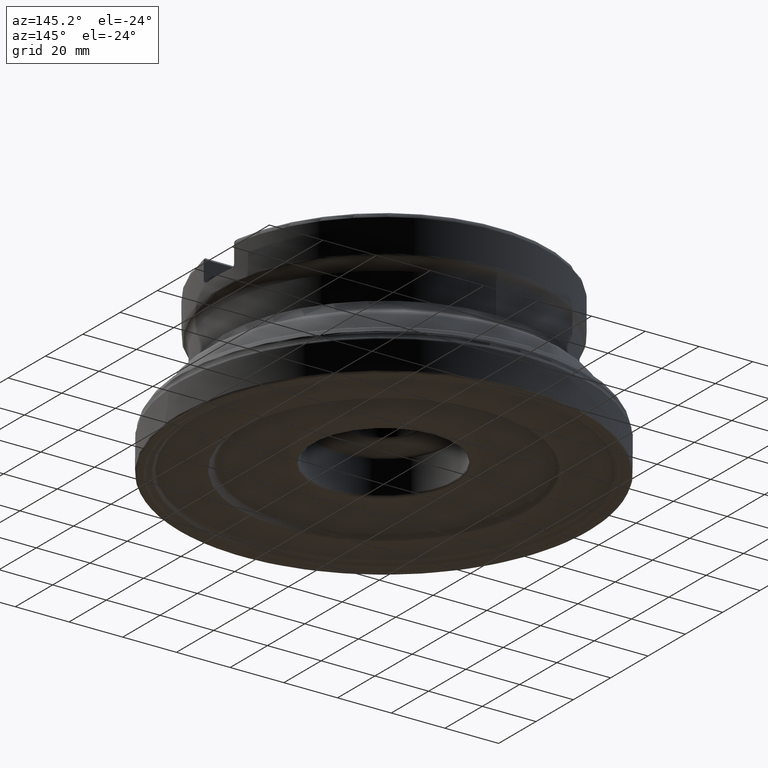
[diagram: clean part render]
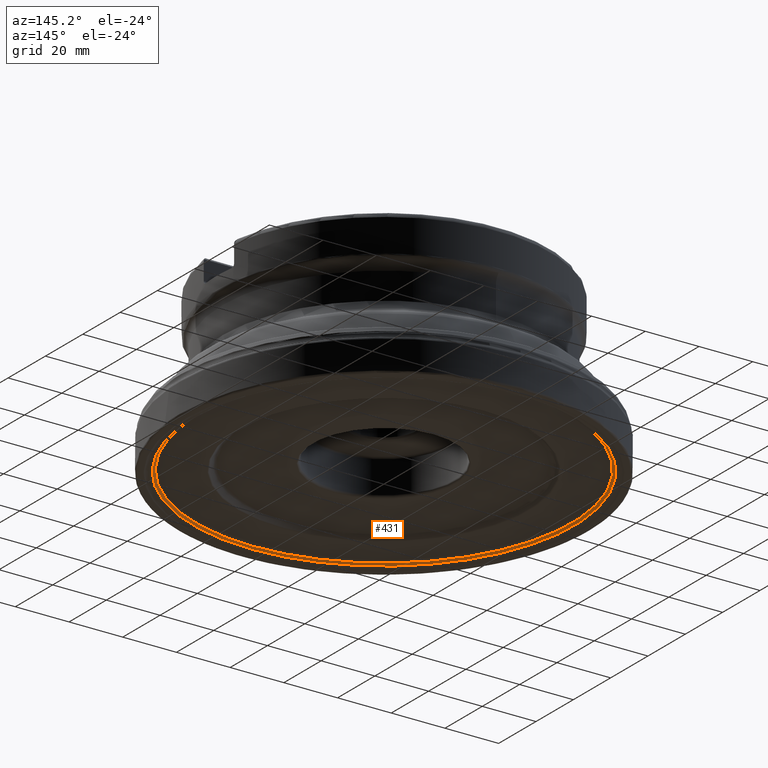
[diagram: same view with one face highlighted and labeled with its STEP entity id]
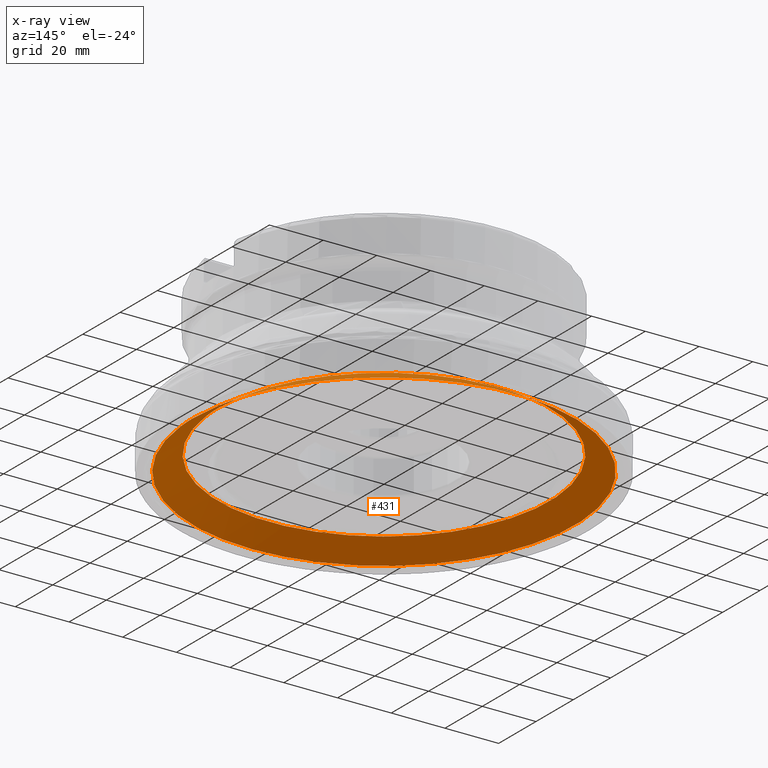
[diagram: x-ray of the same camera — body ghosted, the highlighted face saturated]
A machine part, auxiliary view. The second image highlights one B-rep face of the part: STEP entity #431.
The next image is the same camera in x-ray: the body ghosted, the highlighted face saturated — about 0% of this face is hidden behind the body in this view.
In plain terms, the highlighted face is a SurfaceOfRevolution surface.
Its self-contained STEP definition (entity closure, byte-faithful):
#131=SURFACE_OF_REVOLUTION('',#1183,#152);
#152=AXIS1_PLACEMENT('',#2529,#1588);
#353=FACE_BOUND('',#597,.T.);
#354=FACE_BOUND('',#598,.T.);
#431=ADVANCED_FACE('',(#353,#354),#131,.F.);
#597=EDGE_LOOP('',(#835));
#598=EDGE_LOOP('',(#836));
#835=ORIENTED_EDGE('',*,*,#1053,.T.);
#836=ORIENTED_EDGE('',*,*,#1054,.F.);
#934=VERTEX_POINT('',#2500);
#935=VERTEX_POINT('',#2514);
#1053=EDGE_CURVE('',#934,#934,#1116,.T.);
#1054=EDGE_CURVE('',#935,#935,#1117,.T.);
#1116=CIRCLE('',#1302,61.5937799222245);
#1117=CIRCLE('',#1303,70.9172236874596);
#1183=B_SPLINE_CURVE_WITH_KNOTS('',3,(#2515,#2516,#2517,#2518,#2519,#2520,
#2521,#2522,#2523,#2524,#2525,#2526,#2527,#2528),.UNSPECIFIED.,.F.,.F.,
(4,1,1,1,1,1,1,1,1,1,1,4),(0.,0.228057409693128,0.368730032744676,0.509402655796224,
0.650075278847771,0.720411590373545,0.755579746136432,0.790747901899319,
0.861084213425093,0.931420524950867,0.966588680713754,1.),.UNSPECIFIED.);
#1302=AXIS2_PLACEMENT_3D('',#2499,#1583,#1584);
#1303=AXIS2_PLACEMENT_3D('',#2513,#1586,#1587);
#1583=DIRECTION('',(0.,0.,1.));
#1584=DIRECTION('',(1.,0.,0.));
#1586=DIRECTION('',(0.,0.,1.));
#1587=DIRECTION('',(1.,0.,0.));
#1588=DIRECTION('',(0.,0.,1.));
#2499=CARTESIAN_POINT('',(0.,0.,6.5329232306729));
#2500=CARTESIAN_POINT('',(61.5937799222245,0.,6.5329232306729));
#2513=CARTESIAN_POINT('',(0.,0.,0.804815476483029));
#2514=CARTESIAN_POINT('',(70.9172236874596,0.,0.804815476483029));
#2515=CARTESIAN_POINT('',(70.505819839789,-7.62771994035323,0.80481543104098));
#2516=CARTESIAN_POINT('',(69.7822649180793,-7.62814093842944,1.22120099170339));
#2517=CARTESIAN_POINT('',(68.6177005639652,-7.62721934698245,1.90364026009569));
#2518=CARTESIAN_POINT('',(67.0208704378826,-7.6225068319432,2.86655408846326));
#2519=CARTESIAN_POINT('',(65.7048974606953,-7.61654630443386,3.67566733730147));
#2520=CARTESIAN_POINT('',(64.6134591421042,-7.60995262692895,4.35830513686319));
#2521=CARTESIAN_POINT('',(63.8520964427483,-7.60501556974296,4.84032177045754));
#2522=CARTESIAN_POINT('',(63.4177066478705,-7.60126727113347,5.1168467511746));
#2523=CARTESIAN_POINT('',(62.9828338225011,-7.58587819020958,5.39223035095929));
#2524=CARTESIAN_POINT('',(62.4388661814519,-7.54887330398861,5.7346028239669));
#2525=CARTESIAN_POINT('',(61.8949407620293,-7.48692195271971,6.07336245257427));
#2526=CARTESIAN_POINT('',(61.4656093552587,-7.4224606839065,6.33815525382094));
#2527=CARTESIAN_POINT('',(61.2538155776908,-7.39051432677642,6.46908292370346));
#2528=CARTESIAN_POINT('',(61.1506670993739,-7.37493311216988,6.5329232306729));
#2529=CARTESIAN_POINT('',(0.,0.,0.));